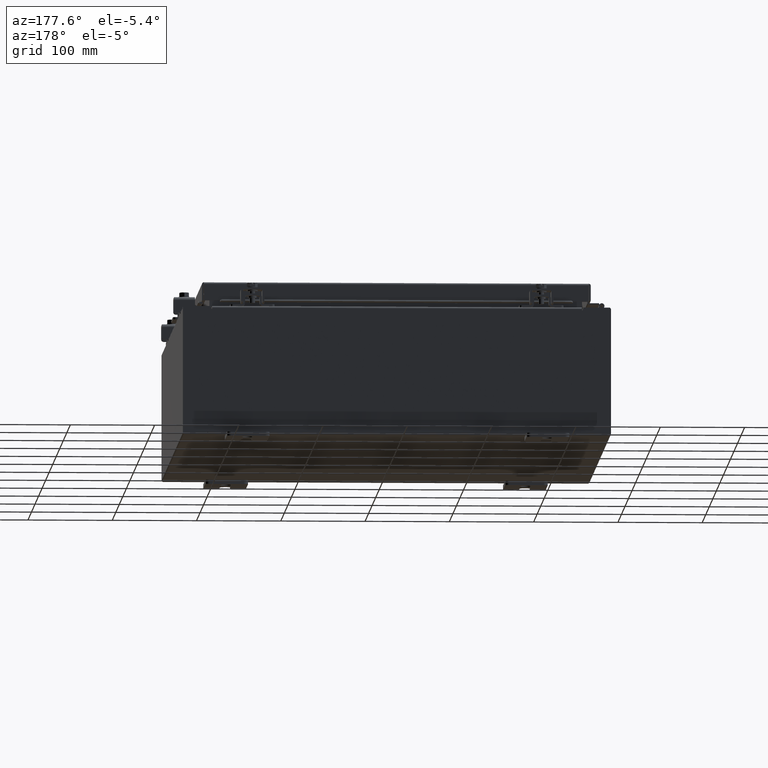
[diagram: clean part render]
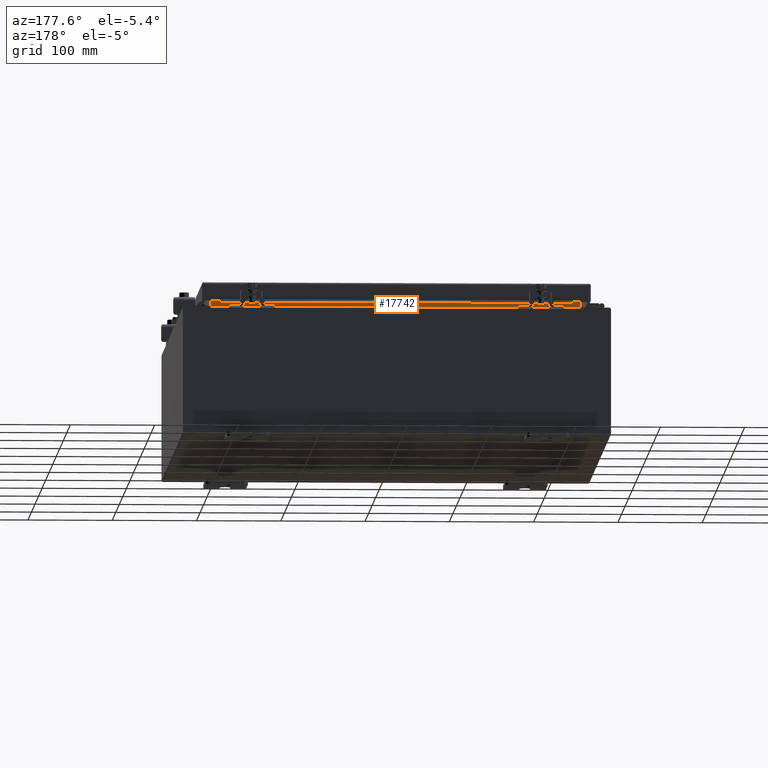
[diagram: same view with one face highlighted and labeled with its STEP entity id]
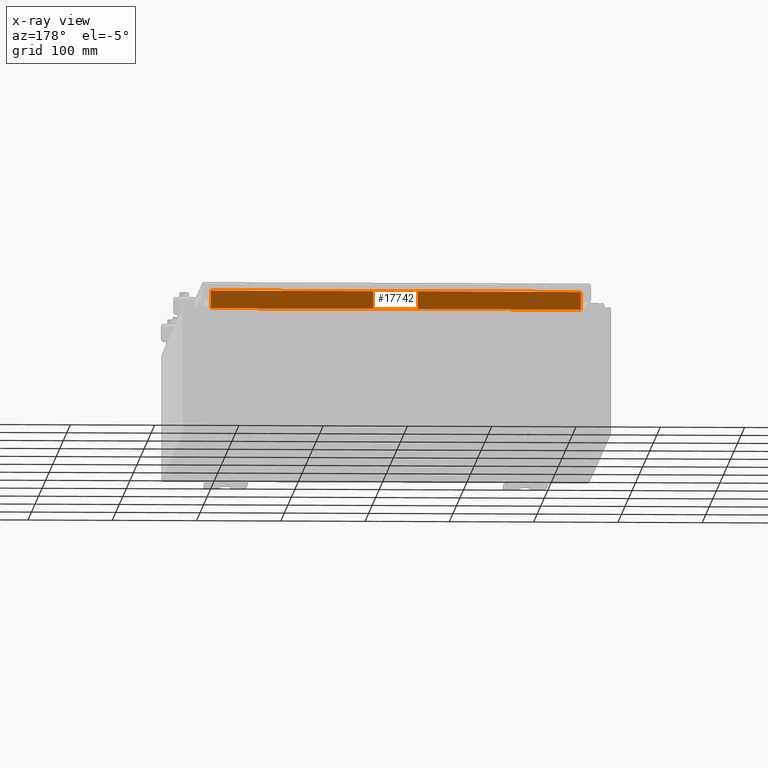
[diagram: x-ray of the same camera — body ghosted, the highlighted face saturated]
A machine part, auxiliary view. The second image highlights one B-rep face of the part: STEP entity #17742.
The next image is the same camera in x-ray: the body ghosted, the highlighted face saturated — about 0% of this face is hidden behind the body in this view.
In plain terms, the highlighted planar face has unit normal (0, 1, 0).
Its self-contained STEP definition (entity closure, byte-faithful):
#1486 = CARTESIAN_POINT ( 'NONE',  ( 8.637200000000000000, -1.300299999999999300, 3.837600000000004600 ) ) ;
#1672 = AXIS2_PLACEMENT_3D ( 'NONE', #1795, #27243, #12025 ) ;
#1795 = CARTESIAN_POINT ( 'NONE',  ( 0.0000000000000000000, -1.300299999999999300, 0.0000000000000000000 ) ) ;
#1978 = DIRECTION ( 'NONE',  ( -0.0000000000000000000, -0.0000000000000000000, -1.000000000000000000 ) ) ;
#2793 = CARTESIAN_POINT ( 'NONE',  ( -8.637200000000000000, -1.300299999999999300, 3.837600000000004600 ) ) ;
#3151 = LINE ( 'NONE', #14568, #22632 ) ;
#3952 = EDGE_CURVE ( 'NONE', #10064, #10308, #25671, .T. ) ;
#6113 = LINE ( 'NONE', #20425, #32381 ) ;
#8961 = VERTEX_POINT ( 'NONE', #2793 ) ;
#10045 = LINE ( 'NONE', #17203, #17625 ) ;
#10064 = VERTEX_POINT ( 'NONE', #21346 ) ;
#10308 = VERTEX_POINT ( 'NONE', #19664 ) ;
#11072 = DIRECTION ( 'NONE',  ( 1.000000000000000000, 0.0000000000000000000, -6.325772226333218300E-017 ) ) ;
#12025 = DIRECTION ( 'NONE',  ( 0.0000000000000000000, -0.0000000000000000000, 1.000000000000000000 ) ) ;
#12887 = DIRECTION ( 'NONE',  ( -1.000000000000000000, -0.0000000000000000000, -0.0000000000000000000 ) ) ;
#14136 = EDGE_LOOP ( 'NONE', ( #16549, #30365, #19135, #22269 ) ) ;
#14568 = CARTESIAN_POINT ( 'NONE',  ( 8.637200000000000000, -1.300299999999999300, 3.925300000000004900 ) ) ;
#16072 = CARTESIAN_POINT ( 'NONE',  ( -8.637200000000000000, -1.300299999999999300, 3.013000000000005700 ) ) ;
#16549 = ORIENTED_EDGE ( 'NONE', *, *, #20836, .F. ) ;
#17203 = CARTESIAN_POINT ( 'NONE',  ( -8.637200000000000000, -1.300299999999999300, 3.000000000000005800 ) ) ;
#17625 = VECTOR ( 'NONE', #1978, 39.37007874015748100 ) ;
#17742 = ADVANCED_FACE ( 'NONE', ( #23082 ), #24684, .T. ) ;
#19135 = ORIENTED_EDGE ( 'NONE', *, *, #28670, .F. ) ;
#19664 = CARTESIAN_POINT ( 'NONE',  ( 8.637199999999996400, -1.300299999999999300, 3.013000000000004800 ) ) ;
#20425 = CARTESIAN_POINT ( 'NONE',  ( 8.637200000000000000, -1.300299999999999300, 3.837600000000004600 ) ) ;
#20457 = EDGE_CURVE ( 'NONE', #30242, #8961, #6113, .T. ) ;
#20836 = EDGE_CURVE ( 'NONE', #8961, #10064, #10045, .T. ) ;
#21346 = CARTESIAN_POINT ( 'NONE',  ( -8.637200000000000000, -1.300299999999999300, 3.013000000000004800 ) ) ;
#22269 = ORIENTED_EDGE ( 'NONE', *, *, #3952, .F. ) ;
#22632 = VECTOR ( 'NONE', #32380, 39.37007874015748100 ) ;
#23082 = FACE_OUTER_BOUND ( 'NONE', #14136, .T. ) ;
#24684 = PLANE ( 'NONE',  #1672 ) ;
#24860 = VECTOR ( 'NONE', #11072, 39.37007874015748100 ) ;
#25671 = LINE ( 'NONE', #16072, #24860 ) ;
#27243 = DIRECTION ( 'NONE',  ( 0.0000000000000000000, 1.000000000000000000, 0.0000000000000000000 ) ) ;
#28670 = EDGE_CURVE ( 'NONE', #10308, #30242, #3151, .T. ) ;
#30242 = VERTEX_POINT ( 'NONE', #1486 ) ;
#30365 = ORIENTED_EDGE ( 'NONE', *, *, #20457, .F. ) ;
#32380 = DIRECTION ( 'NONE',  ( -0.0000000000000000000, -0.0000000000000000000, 1.000000000000000000 ) ) ;
#32381 = VECTOR ( 'NONE', #12887, 39.37007874015748100 ) ;